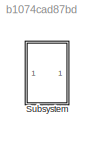
MODEL slx_b1074cad87bd
KIND model
CONFIG AbsTol = auto
CONFIG EnableMultiTasking = off
CONFIG FixedStep = auto
CONFIG MaxStep = 0.001
CONFIG MinStep = auto
CONFIG RelTol = 1e-3
CONFIG SampleTimeConstraint = Unconstrained
CONFIG Solver = ode45
CONFIG SolverName = ode45
CONFIG StartTime = 0.0
CONFIG StopTime = 100
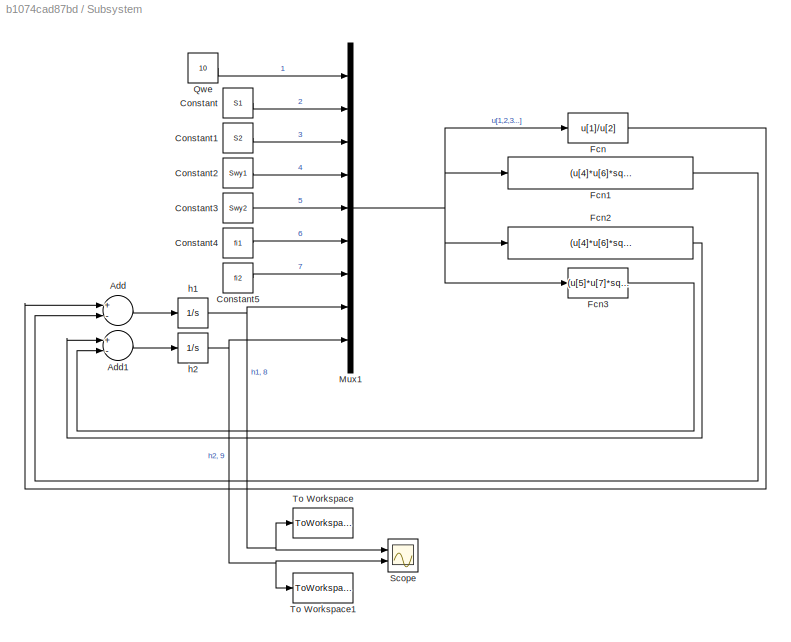
BLOCK [SubSystem] Subsystem
  Ports = []
  RequestExecContextInheritance = off
BLOCK [Sum] Subsystem/Add
  InputSameDT = off
  Inputs = +-
  OutDataTypeStr = Inherit: Inherit via internal rule
  Ports = [2, 1]
  SaturateOnIntegerOverflow = off
BLOCK [Sum] Subsystem/Add1
  InputSameDT = off
  Inputs = +-
  OutDataTypeStr = Inherit: Inherit via internal rule
  Ports = [2, 1]
  SaturateOnIntegerOverflow = off
BLOCK [Constant] Subsystem/Constant
  Value = S1
BLOCK [Constant] Subsystem/Constant1
  Value = S2
BLOCK [Constant] Subsystem/Constant2
  Value = Swy1
BLOCK [Constant] Subsystem/Constant3
  Value = Swy2
BLOCK [Constant] Subsystem/Constant4
  Value = fi1
BLOCK [Constant] Subsystem/Constant5
  Value = fi2
BLOCK [Fcn] Subsystem/Fcn
  Expr = u[1]/u[2]
BLOCK [Fcn] Subsystem/Fcn1
  Expr = (u[4]*u[6]*sqrt(2*9.81*(u[8]-u[9])))/u[2]
BLOCK [Fcn] Subsystem/Fcn2
  Expr = (u[4]*u[6]*sqrt(2*9.81*(u[8]-u[9])))/u[3]
BLOCK [Fcn] Subsystem/Fcn3
  Expr = (u[5]*u[7]*sqrt(2*9.81*u[9]))/u[3]
BLOCK [Mux] Subsystem/Mux1
  DisplayOption = bar
  Inputs = 9
  Ports = [9, 1]
BLOCK [Constant] Subsystem/Qwe
  Value = 10
BLOCK [Scope] Subsystem/Scope
  Floating = off
  NumInputPorts = 2
  Ports = [2]
  ScopeSpecificationString = Simulink.scopes.TimeScopeBlockCfg('CurrentConfiguration', extmgr.ConfigurationSet(extmgr.Configuration('Core','General UI',true),extmgr.Configuration('Core','Source UI',true),extmgr.Configuration('Sources','WiredSimulink',true,'DataLoggingVariableName','ScopeData1'),extmgr.Configuration('Visuals','Time Domain',true,'SerializedDisplays',{struct('MinYLimReal','-6.52962','MaxYLimReal','58.76661','YLa...<+1448ch>
BLOCK [ToWorkspace] Subsystem/To Workspace
  FixptAsFi = on
  MaxDataPoints = inf
  Ports = [1]
  SampleTime = -1
  Save2DSignal = 3-D array (concatenate along third dimension)
  VariableName = h1
BLOCK [ToWorkspace] Subsystem/To Workspace1
  FixptAsFi = on
  MaxDataPoints = inf
  Ports = [1]
  SampleTime = -1
  Save2DSignal = 3-D array (concatenate along third dimension)
  VariableName = h2
BLOCK [Integrator] Subsystem/h1
  Ports = [1, 1]
BLOCK [Integrator] Subsystem/h2
  Ports = [1, 1]
LINE Subsystem/Add1:1 -> Subsystem/h2:1
LINE Subsystem/Add:1 -> Subsystem/h1:1
LINE Subsystem/Constant1:1 -> Subsystem/Mux1:3
LINE Subsystem/Constant2:1 -> Subsystem/Mux1:4
LINE Subsystem/Constant3:1 -> Subsystem/Mux1:5
LINE Subsystem/Constant4:1 -> Subsystem/Mux1:6
LINE Subsystem/Constant5:1 -> Subsystem/Mux1:7
LINE Subsystem/Constant:1 -> Subsystem/Mux1:2
LINE Subsystem/Fcn1:1 -> Subsystem/Add:2
LINE Subsystem/Fcn2:1 -> Subsystem/Add1:1
LINE Subsystem/Fcn3:1 -> Subsystem/Add1:2
LINE Subsystem/Fcn:1 -> Subsystem/Add:1
NET Subsystem/Mux1:1 -> Subsystem/Fcn1:1, Subsystem/Fcn2:1, Subsystem/Fcn3:1, Subsystem/Fcn:1
LINE Subsystem/Qwe:1 -> Subsystem/Mux1:1
NET Subsystem/h1:1 -> Subsystem/Mux1:8, Subsystem/Scope:1, Subsystem/To Workspace:1
NET Subsystem/h2:1 -> Subsystem/Mux1:9, Subsystem/Scope:2, Subsystem/To Workspace1:1
note: NET lines group one-source signal fan-out (src -> all destinations, sorted); 1:1 wires keep LINE
